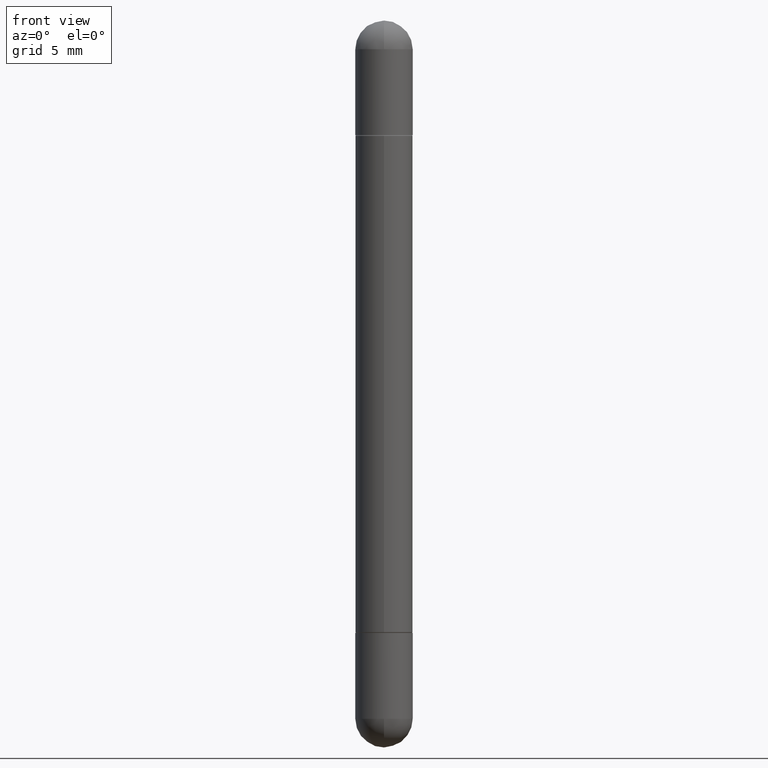
[diagram: clean part render]
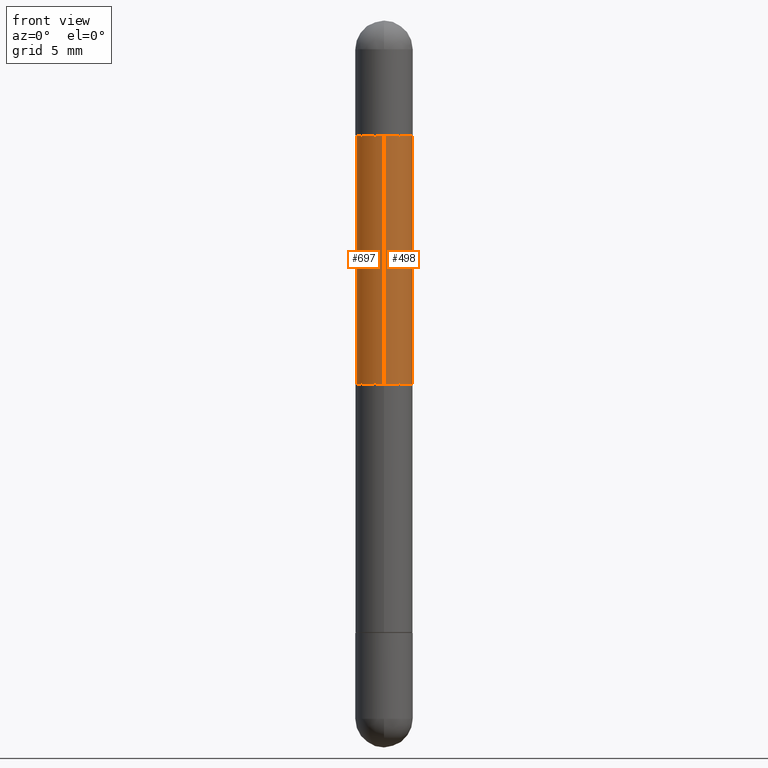
[diagram: same view with one multi-face feature highlighted, each face labeled with its STEP entity id]
A machine part, front view. The highlighted faces form ONE feature: a constant-radius fillet chain: 2 tangent blend faces with common blend radius 1.4999 mm. The faces share edges in the B-rep.
Their STEP definitions:
[1] entity #498 (Cylinder):
#4 = EDGE_LOOP ( 'NONE', ( #5, #637, #101, #326 ) ) ;
#5 = ORIENTED_EDGE ( 'NONE', *, *, #253, .F. ) ;
#24 = DIRECTION ( 'NONE',  ( 2.449736537588635656E-29, -3.485369704569148359E-15, 1.000000000000000000 ) ) ;
#51 = DIRECTION ( 'NONE',  ( -0.000000000000000000, -0.000000000000000000, -1.000000000000000000 ) ) ;
#55 = CIRCLE ( 'NONE', #622, 0.05905000000000014404 ) ;
#86 = DIRECTION ( 'NONE',  ( -1.000000000000000000, 0.000000000000000000, 0.000000000000000000 ) ) ;
#101 = ORIENTED_EDGE ( 'NONE', *, *, #234, .T. ) ;
#117 = CARTESIAN_POINT ( 'NONE',  ( -4.123439461173500217E-16, -0.05905000000000269061, -0.7480500000000001037 ) ) ;
#193 = CIRCLE ( 'NONE', #401, 0.05905000000000008159 ) ;
#215 = DIRECTION ( 'NONE',  ( -2.449736537588635656E-29, 3.485369704569147964E-15, -1.000000000000000000 ) ) ;
#234 = EDGE_CURVE ( 'NONE', #693, #639, #784, .T. ) ;
#247 = DIRECTION ( 'NONE',  ( -6.982962677686265922E-15, -1.000000000000000000, -4.626330217890363025E-15 ) ) ;
#253 = EDGE_CURVE ( 'NONE', #502, #751, #457, .T. ) ;
#262 = CARTESIAN_POINT ( 'NONE',  ( 3.083973327170334045E-29, -4.387731921082100675E-15, -0.2372000000000001330 ) ) ;
#274 = CARTESIAN_POINT ( 'NONE',  ( 4.051124067684401762E-16, 0.05904999999999747257, -0.7480500000000001037 ) ) ;
#286 = EDGE_CURVE ( 'NONE', #693, #502, #55, .T. ) ;
#287 = EDGE_CURVE ( 'NONE', #751, #639, #193, .T. ) ;
#303 = CARTESIAN_POINT ( 'NONE',  ( -4.123439461173441546E-16, -0.05905000000000452248, -0.2372000000000003272 ) ) ;
#317 = DIRECTION ( 'NONE',  ( -2.449736537588635656E-29, 3.485369704569148359E-15, -1.000000000000000000 ) ) ;
#326 = ORIENTED_EDGE ( 'NONE', *, *, #287, .F. ) ;
#334 = DIRECTION ( 'NONE',  ( -2.449736537588635656E-29, 3.485369704569147964E-15, -1.000000000000000000 ) ) ;
#360 = DIRECTION ( 'NONE',  ( -6.982962677686265922E-15, -1.000000000000000000, -3.469747663417768719E-15 ) ) ;
#373 = CARTESIAN_POINT ( 'NONE',  ( 1.832525416943179176E-29, -2.607230807502951739E-15, -0.7480500000000001037 ) ) ;
#401 = AXIS2_PLACEMENT_3D ( 'NONE', #373, #51, #86 ) ;
#451 = AXIS2_PLACEMENT_3D ( 'NONE', #645, #317, #247 ) ;
#457 = LINE ( 'NONE', #582, #554 ) ;
#498 = ADVANCED_FACE ( 'NONE', ( #627 ), #503, .T. ) ;
#502 = VERTEX_POINT ( 'NONE', #562 ) ;
#503 = CYLINDRICAL_SURFACE ( 'NONE', #451, 0.05905000000000008159 ) ;
#554 = VECTOR ( 'NONE', #215, 39.37007874015748143 ) ;
#562 = CARTESIAN_POINT ( 'NONE',  ( 4.051124067684407678E-16, 0.05904999999999576560, -0.2371999999999999387 ) ) ;
#582 = CARTESIAN_POINT ( 'NONE',  ( 4.051124067684094599E-16, 0.05905000000000008159, -1.496099999999999985 ) ) ;
#622 = AXIS2_PLACEMENT_3D ( 'NONE', #262, #24, #360 ) ;
#627 = FACE_OUTER_BOUND ( 'NONE', #4, .T. ) ;
#637 = ORIENTED_EDGE ( 'NONE', *, *, #286, .F. ) ;
#639 = VERTEX_POINT ( 'NONE', #117 ) ;
#645 = CARTESIAN_POINT ( 'NONE',  ( 0.000000000000000000, 0.000000000000000000, -1.496100000000000207 ) ) ;
#653 = CARTESIAN_POINT ( 'NONE',  ( -4.123439461173745750E-16, -0.05905000000000008159, -1.496100000000000430 ) ) ;
#693 = VERTEX_POINT ( 'NONE', #303 ) ;
#704 = VECTOR ( 'NONE', #334, 39.37007874015748143 ) ;
#751 = VERTEX_POINT ( 'NONE', #274 ) ;
#784 = LINE ( 'NONE', #653, #704 ) ;
[2] entity #697 (Cylinder):
#45 = CARTESIAN_POINT ( 'NONE',  ( 1.832525416943179176E-29, -2.607230807502951739E-15, -0.7480500000000001037 ) ) ;
#67 = AXIS2_PLACEMENT_3D ( 'NONE', #45, #425, #264 ) ;
#109 = FACE_OUTER_BOUND ( 'NONE', #629, .T. ) ;
#117 = CARTESIAN_POINT ( 'NONE',  ( -4.123439461173500217E-16, -0.05905000000000269061, -0.7480500000000001037 ) ) ;
#215 = DIRECTION ( 'NONE',  ( -2.449736537588635656E-29, 3.485369704569147964E-15, -1.000000000000000000 ) ) ;
#234 = EDGE_CURVE ( 'NONE', #693, #639, #784, .T. ) ;
#245 = AXIS2_PLACEMENT_3D ( 'NONE', #353, #804, #488 ) ;
#253 = EDGE_CURVE ( 'NONE', #502, #751, #457, .T. ) ;
#264 = DIRECTION ( 'NONE',  ( -1.000000000000000000, 0.000000000000000000, 0.000000000000000000 ) ) ;
#274 = CARTESIAN_POINT ( 'NONE',  ( 4.051124067684401762E-16, 0.05904999999999747257, -0.7480500000000001037 ) ) ;
#303 = CARTESIAN_POINT ( 'NONE',  ( -4.123439461173441546E-16, -0.05905000000000452248, -0.2372000000000003272 ) ) ;
#324 = EDGE_CURVE ( 'NONE', #502, #693, #682, .T. ) ;
#334 = DIRECTION ( 'NONE',  ( -2.449736537588635656E-29, 3.485369704569147964E-15, -1.000000000000000000 ) ) ;
#353 = CARTESIAN_POINT ( 'NONE',  ( 0.000000000000000000, 0.000000000000000000, -1.496100000000000207 ) ) ;
#358 = ORIENTED_EDGE ( 'NONE', *, *, #324, .F. ) ;
#368 = CYLINDRICAL_SURFACE ( 'NONE', #245, 0.05905000000000008159 ) ;
#412 = CIRCLE ( 'NONE', #67, 0.05905000000000008159 ) ;
#425 = DIRECTION ( 'NONE',  ( -0.000000000000000000, -0.000000000000000000, -1.000000000000000000 ) ) ;
#457 = LINE ( 'NONE', #582, #554 ) ;
#469 = DIRECTION ( 'NONE',  ( 2.449736537588635656E-29, -3.485369704569148359E-15, 1.000000000000000000 ) ) ;
#488 = DIRECTION ( 'NONE',  ( -6.982962677686265922E-15, -1.000000000000000000, -4.626330217890363025E-15 ) ) ;
#502 = VERTEX_POINT ( 'NONE', #562 ) ;
#554 = VECTOR ( 'NONE', #215, 39.37007874015748143 ) ;
#556 = AXIS2_PLACEMENT_3D ( 'NONE', #788, #469, #725 ) ;
#562 = CARTESIAN_POINT ( 'NONE',  ( 4.051124067684407678E-16, 0.05904999999999576560, -0.2371999999999999387 ) ) ;
#582 = CARTESIAN_POINT ( 'NONE',  ( 4.051124067684094599E-16, 0.05905000000000008159, -1.496099999999999985 ) ) ;
#583 = EDGE_CURVE ( 'NONE', #639, #751, #412, .T. ) ;
#629 = EDGE_LOOP ( 'NONE', ( #358, #787, #688, #807 ) ) ;
#639 = VERTEX_POINT ( 'NONE', #117 ) ;
#653 = CARTESIAN_POINT ( 'NONE',  ( -4.123439461173745750E-16, -0.05905000000000008159, -1.496100000000000430 ) ) ;
#682 = CIRCLE ( 'NONE', #556, 0.05905000000000014404 ) ;
#688 = ORIENTED_EDGE ( 'NONE', *, *, #583, .F. ) ;
#693 = VERTEX_POINT ( 'NONE', #303 ) ;
#697 = ADVANCED_FACE ( 'NONE', ( #109 ), #368, .T. ) ;
#704 = VECTOR ( 'NONE', #334, 39.37007874015748143 ) ;
#725 = DIRECTION ( 'NONE',  ( -6.982962677686265922E-15, -1.000000000000000000, -3.469747663417768719E-15 ) ) ;
#751 = VERTEX_POINT ( 'NONE', #274 ) ;
#784 = LINE ( 'NONE', #653, #704 ) ;
#787 = ORIENTED_EDGE ( 'NONE', *, *, #253, .T. ) ;
#788 = CARTESIAN_POINT ( 'NONE',  ( 3.083973327170334045E-29, -4.387731921082100675E-15, -0.2372000000000001330 ) ) ;
#804 = DIRECTION ( 'NONE',  ( -2.449736537588635656E-29, 3.485369704569148359E-15, -1.000000000000000000 ) ) ;
#807 = ORIENTED_EDGE ( 'NONE', *, *, #234, .F. ) ;